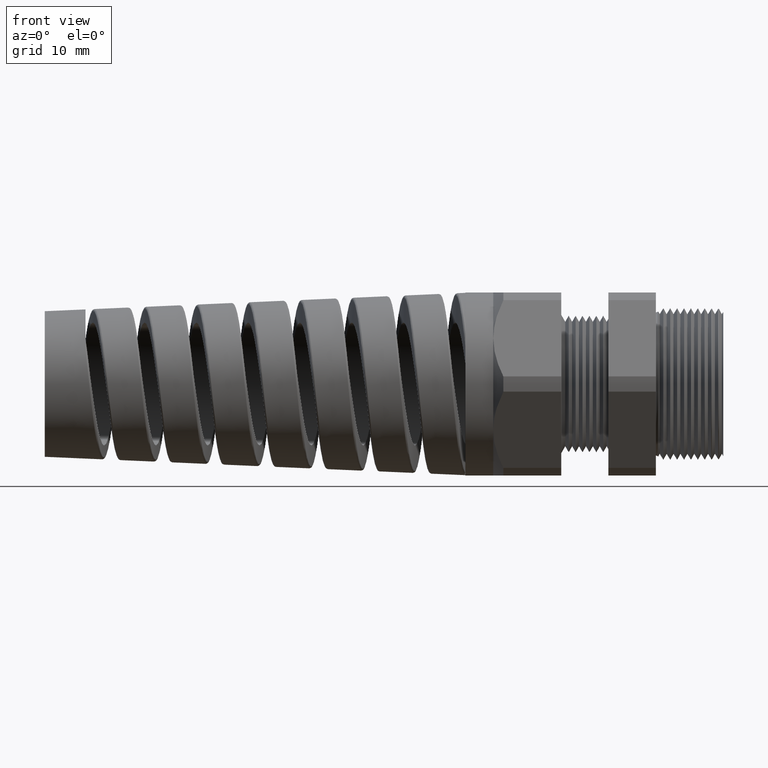
[diagram: clean part render]
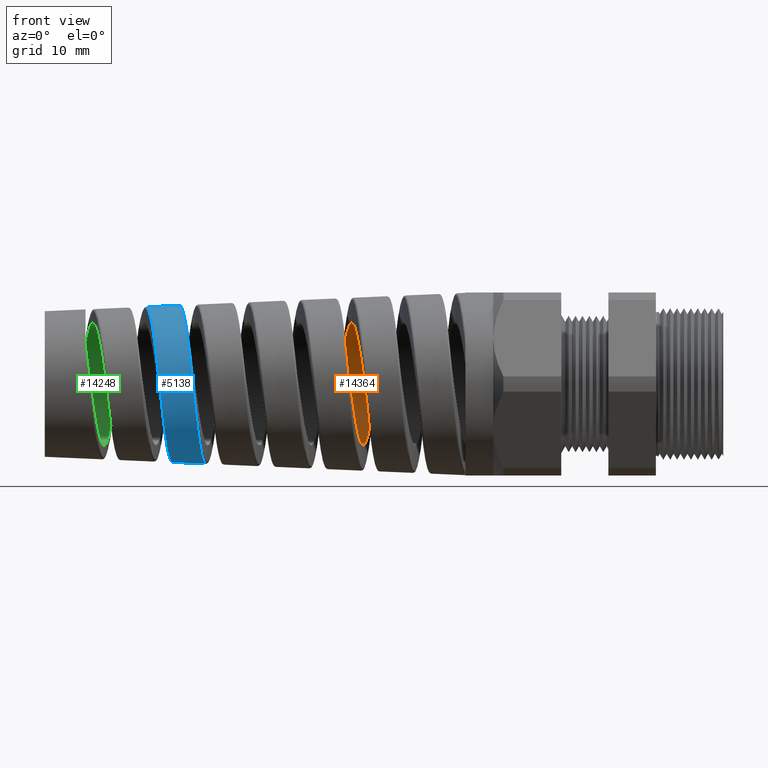
[diagram: same view with three faces highlighted in distinct colors, each labeled with its STEP entity id]
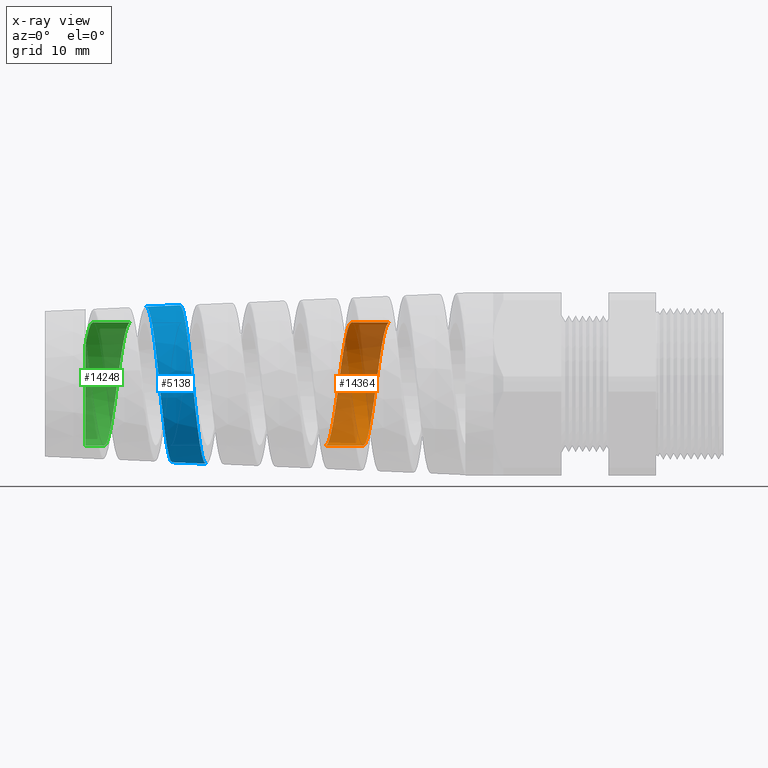
[diagram: x-ray of the same camera — body ghosted, the three highlighted faces saturated]
A machine part, front view with three faces highlighted in distinct colors.
The next image is the same camera in x-ray (body ghosted, the three faces saturated) — at least one of them is partly hidden behind the body in this view.
Their STEP definitions:

[orange] entity #14364 — the highlighted cylindrical surface (partial cylindrical patch) has radius 9.0424 mm, axis along (1, 0, 0).
#1965 = CARTESIAN_POINT ( 'NONE',  ( -1.854920413638555100, 8.926206606485725500E-013, 0.3559999999999997600 ) ) ;
#2959 = CARTESIAN_POINT ( 'NONE',  ( -2.072502589718470600, -5.273363015394949400E-013, 0.3560000000000000900 ) ) ;
#3009 = DIRECTION ( 'NONE',  ( 1.000000000000000000, 0.0000000000000000000, 0.0000000000000000000 ) ) ;
#3010 = VECTOR ( 'NONE', #3009, 39.37007874015748100 ) ;
#3011 = CARTESIAN_POINT ( 'NONE',  ( 0.09602717987635048200, 0.0000000000000000000, -0.3559999999999999800 ) ) ;
#3017 = LINE ( 'NONE', #3011, #3010 ) ;
#3119 = CARTESIAN_POINT ( 'NONE',  ( -2.222434233688555400, -1.128104090228217900E-012, -0.3559999999999998200 ) ) ;
#3122 = CARTESIAN_POINT ( 'NONE',  ( -2.004988656812803200, -1.046852688197125800E-015, -0.3559999999999999800 ) ) ;
#3245 = DIRECTION ( 'NONE',  ( 1.000000000000000000, 0.0000000000000000000, 0.0000000000000000000 ) ) ;
#3246 = VECTOR ( 'NONE', #3245, 39.37007874015748100 ) ;
#3247 = CARTESIAN_POINT ( 'NONE',  ( 0.09602717987635048200, 4.359742604964577000E-017, 0.3559999999999999800 ) ) ;
#3248 = LINE ( 'NONE', #3247, #3246 ) ;
#3771 = FACE_OUTER_BOUND ( 'NONE', #14362, .T. ) ;
#3814 = CARTESIAN_POINT ( 'NONE',  ( -2.158412679944762500, 0.3468693843080136700, -0.08096443874611961000 ) ) ;
#3815 = CARTESIAN_POINT ( 'NONE',  ( -2.153695054397244800, 0.3537357340100373300, -0.04644858373684549600 ) ) ;
#3816 = CARTESIAN_POINT ( 'NONE',  ( -2.150596466477012300, 0.3559917389357876200, -0.02333396272115667900 ) ) ;
#3817 = CARTESIAN_POINT ( 'NONE',  ( -2.145929546067105500, 0.3560040968839250400, 0.01147741275550947200 ) ) ;
#3818 = CARTESIAN_POINT ( 'NONE',  ( -2.144370923244971000, 0.3554422744081823200, 0.02310463939706753800 ) ) ;
#3819 = CARTESIAN_POINT ( 'NONE',  ( -2.141232458981126900, 0.3531566147548692600, 0.04640517485163711500 ) ) ;
#3820 = CARTESIAN_POINT ( 'NONE',  ( -2.139653979790969700, 0.3514257122277755800, 0.05806690458398854800 ) ) ;
#3821 = CARTESIAN_POINT ( 'NONE',  ( -2.134967466613751300, 0.3446011491912281400, 0.09235385464151359100 ) ) ;
#3822 = CARTESIAN_POINT ( 'NONE',  ( -2.131873345007480500, 0.3378721260817478800, 0.1145459677848539700 ) ) ;
#3823 = CARTESIAN_POINT ( 'NONE',  ( -2.127190291039148900, 0.3245205508431142100, 0.1468264286842600500 ) ) ;
#3824 = CARTESIAN_POINT ( 'NONE',  ( -2.125614479652911700, 0.3194947556240857500, 0.1574688813277186600 ) ) ;
#3825 = CARTESIAN_POINT ( 'NONE',  ( -2.122472449403272100, 0.3084464748005442700, 0.1781407298767316300 ) ) ;
#3826 = CARTESIAN_POINT ( 'NONE',  ( -2.120912706550832600, 0.3024530172949440600, 0.1881300522742017600 ) ) ;
#3827 = CARTESIAN_POINT ( 'NONE',  ( -2.116244317971835500, 0.2831060664544171000, 0.2170850803135613300 ) ) ;
#3828 = CARTESIAN_POINT ( 'NONE',  ( -2.113146796100423800, 0.2683987232642024400, 0.2350473460053953100 ) ) ;
#3829 = CARTESIAN_POINT ( 'NONE',  ( -2.108434699411450900, 0.2435541678446720400, 0.2599127732605649400 ) ) ;
#3830 = CARTESIAN_POINT ( 'NONE',  ( -2.106858292739023100, 0.2348292019667128900, 0.2678187355147879100 ) ) ;
#3831 = CARTESIAN_POINT ( 'NONE',  ( -2.103735960787533400, 0.2168232973886299900, 0.2825938550262282500 ) ) ;
#3832 = CARTESIAN_POINT ( 'NONE',  ( -2.102181922764194700, 0.2075001589168221400, 0.2895066539199592800 ) ) ;
#3833 = CARTESIAN_POINT ( 'NONE',  ( -2.099073404438497100, 0.1882236354412332400, 0.3023942487477617700 ) ) ;
#3834 = CARTESIAN_POINT ( 'NONE',  ( -2.097518867349242200, 0.1782702591622995200, 0.3083690439504481700 ) ) ;
#3835 = CARTESIAN_POINT ( 'NONE',  ( -2.094394789012018300, 0.1577255428671440800, 0.3193656301106485000 ) ) ;
#3836 = CARTESIAN_POINT ( 'NONE',  ( -2.092816676020362400, 0.1470739767209700600, 0.3244107612315476600 ) ) ;
#3837 = CARTESIAN_POINT ( 'NONE',  ( -2.088107867420577100, 0.1146222152467938900, 0.3378551972329687000 ) ) ;
#3838 = CARTESIAN_POINT ( 'NONE',  ( -2.085011560015525200, 0.09240749664014777400, 0.3445810370231836000 ) ) ;
#3839 = CARTESIAN_POINT ( 'NONE',  ( -2.080341879989779000, 0.05824814322045637100, 0.3513943126164493200 ) ) ;
#3840 = CARTESIAN_POINT ( 'NONE',  ( -2.078781180237892400, 0.04672115628606296500, 0.3531156685055147300 ) ) ;
#3841 = CARTESIAN_POINT ( 'NONE',  ( -2.075636657848790400, 0.02337947532987080100, 0.3554250158923867300 ) ) ;
#3842 = CARTESIAN_POINT ( 'NONE',  ( -2.074062850385225400, 0.01163927714943782700, 0.3560000000000172500 ) ) ;
#3843 = CARTESIAN_POINT ( 'NONE',  ( -2.072502589718470600, -5.273363015394949400E-013, 0.3560000000000000900 ) ) ;
#3844 = B_SPLINE_CURVE_WITH_KNOTS ( 'NONE', 3,
 ( #3843, #3842, #3841, #3840, #3839, #3838, #3837, #3836, #3835, #3834, #3833, #3832, #3831, #3830, #3829, #3828, #3827, #3826, #3825, #3824, #3823, #3822, #3821, #3820, #3819, #3818, #3817, #3816, #3815, #3814, #3890, #3889, #3888, #3887, #3886, #3885, #3884, #3883, #3882, #3881, #3880, #3879, #3878, #3877, #3876, #3875, #3874, #3873, #3872, #3871 ),
 .UNSPECIFIED., .F., .F.,
 ( 4, 2, 2, 2, 2, 2, 2, 2, 2, 2, 2, 2, 2, 2, 2, 2, 2, 2, 2, 2, 2, 2, 2, 2, 4 ),
 ( 0.1414492424780851600, 0.1423405965915473500, 0.1432319507050095200, 0.1450146589319338800, 0.1459060130453960800, 0.1467973671588582700, 0.1476887212723204400, 0.1485800753857826300, 0.1503627836127070000, 0.1512541377261691900, 0.1521454918396313600, 0.1539282000665557200, 0.1548195541800179200, 0.1557109082934800800, 0.1574936165204044400, 0.1583849706338666400, 0.1592763247473288100, 0.1601676788607910000, 0.1610590329742531700, 0.1628417412011775300, 0.1646244494281018900, 0.1664071576550262600, 0.1672985117684884500, 0.1681898658819506200, 0.1699725741088749800 ),
 .UNSPECIFIED. ) ;
#3845 = DIRECTION ( 'NONE',  ( 0.0000000000000000000, 0.0000000000000000000, -1.000000000000000000 ) ) ;
#3846 = DIRECTION ( 'NONE',  ( 1.000000000000000000, 0.0000000000000000000, 0.0000000000000000000 ) ) ;
#3847 = CARTESIAN_POINT ( 'NONE',  ( 0.09602717987635048200, 0.0000000000000000000, 0.0000000000000000000 ) ) ;
#3848 = AXIS2_PLACEMENT_3D ( 'NONE', #3847, #3846, #3845 ) ;
#3849 = CYLINDRICAL_SURFACE ( 'NONE', #3848, 0.3559999999999999800 ) ;
#3850 = CARTESIAN_POINT ( 'NONE',  ( -1.945581889512683500, 0.3378249631781710100, -0.1146716931420971000 ) ) ;
#3851 = CARTESIAN_POINT ( 'NONE',  ( -1.950255707987540700, 0.3245047687917638200, -0.1468587102285925900 ) ) ;
#3852 = CARTESIAN_POINT ( 'NONE',  ( -1.951817875396148100, 0.3195289945818805000, -0.1574002711191545800 ) ) ;
#3853 = CARTESIAN_POINT ( 'NONE',  ( -1.954966085702651400, 0.3084733784352756100, -0.1780949143676429100 ) ) ;
#3854 = CARTESIAN_POINT ( 'NONE',  ( -1.956540205562431900, 0.3024314793032005200, -0.1881664079164996600 ) ) ;
#3855 = CARTESIAN_POINT ( 'NONE',  ( -1.961224544814732100, 0.2830320125028549200, -0.2171876305535535800 ) ) ;
#3856 = CARTESIAN_POINT ( 'NONE',  ( -1.964320939049746500, 0.2683268495074726000, -0.2351183002734366900 ) ) ;
#3857 = CARTESIAN_POINT ( 'NONE',  ( -1.969014727328868100, 0.2436013105784269600, -0.2598660805241651600 ) ) ;
#3858 = CARTESIAN_POINT ( 'NONE',  ( -1.970596213287425300, 0.2348601596722508000, -0.2677936842475280900 ) ) ;
#3859 = CARTESIAN_POINT ( 'NONE',  ( -1.973734461911268200, 0.2167795374018720300, -0.2826294112224881400 ) ) ;
#3860 = CARTESIAN_POINT ( 'NONE',  ( -1.975293696179423900, 0.2074329099656938800, -0.2895550813819081600 ) ) ;
#3861 = CARTESIAN_POINT ( 'NONE',  ( -1.979963397531577800, 0.1784983896883088100, -0.3088892261675006400 ) ) ;
#3862 = CARTESIAN_POINT ( 'NONE',  ( -1.983065319302467200, 0.1580242885395968800, -0.3198685890049364800 ) ) ;
#3863 = CARTESIAN_POINT ( 'NONE',  ( -1.989367806858804800, 0.1146330092275015000, -0.3378562759457079400 ) ) ;
#3864 = CARTESIAN_POINT ( 'NONE',  ( -1.992482767404386100, 0.09230622085777952200, -0.3446060274759786300 ) ) ;
#3865 = CARTESIAN_POINT ( 'NONE',  ( -1.997150266791141800, 0.05819252169453835400, -0.3514030002209510000 ) ) ;
#3866 = CARTESIAN_POINT ( 'NONE',  ( -1.998707258243030100, 0.04670142512174314100, -0.3531163331949078200 ) ) ;
#3867 = CARTESIAN_POINT ( 'NONE',  ( -2.001838611259727100, 0.02347686933435521800, -0.3554166632048597100 ) ) ;
#3868 = CARTESIAN_POINT ( 'NONE',  ( -2.003420831685201400, 0.01168465934090673000, -0.3559999999999997100 ) ) ;
#3869 = CARTESIAN_POINT ( 'NONE',  ( -2.004988656812803200, -1.046852688197125800E-015, -0.3559999999999999800 ) ) ;
#3870 = B_SPLINE_CURVE_WITH_KNOTS ( 'NONE', 3,
 ( #3869, #3868, #3867, #3866, #3865, #3864, #3863, #3862, #3861, #3860, #3859, #3858, #3857, #3856, #3855, #3854, #3853, #3852, #3851, #3850, #3932, #3931, #3930, #3929, #3928, #3927, #3926, #3925, #3924, #3923, #3922, #3921, #3920, #3919, #3918, #3917, #3916, #3915, #3914, #3913, #3912, #3911, #3910, #3909, #3908, #3907, #3906, #3905, #3904, #3903, #3902 ),
 .UNSPECIFIED., .F., .F.,
 ( 4, 2, 2, 2, 2, 2, 2, 2, 2, 2, 2, 2, 1, 2, 2, 2, 2, 2, 2, 2, 2, 2, 2, 2, 2, 4 ),
 ( 0.3052336296755255300, 0.3061232269681359300, 0.3070128242607463300, 0.3087920188459670800, 0.3105712134311878800, 0.3114608107237982800, 0.3123504080164086800, 0.3141296026016294200, 0.3150191998942398200, 0.3159087971868502200, 0.3176879917720709700, 0.3185775890646813700, 0.3194671863572917700, 0.3203567836499021700, 0.3212463809425125700, 0.3230255755277333100, 0.3239151728203437100, 0.3248047701129541100, 0.3265839646981748600, 0.3274735619907852600, 0.3283631592833956600, 0.3301423538686164000, 0.3310319511612268000, 0.3319215484538372000, 0.3328111457464475500, 0.3337007430390579500 ),
 .UNSPECIFIED. ) ;
#3871 = CARTESIAN_POINT ( 'NONE',  ( -2.222434233688555400, -1.128104090228217900E-012, -0.3559999999999998200 ) ) ;
#3872 = CARTESIAN_POINT ( 'NONE',  ( -2.219282582438263200, 0.02350929705091474700, -0.3560000000000743700 ) ) ;
#3873 = CARTESIAN_POINT ( 'NONE',  ( -2.216181574039021400, 0.04663653870453374900, -0.3536935862579064200 ) ) ;
#3874 = CARTESIAN_POINT ( 'NONE',  ( -2.211517095515436600, 0.08076527869489226500, -0.3469113715099522200 ) ) ;
#3875 = CARTESIAN_POINT ( 'NONE',  ( -2.209960157898404700, 0.09204716843761767700, -0.3440928556382720800 ) ) ;
#3876 = CARTESIAN_POINT ( 'NONE',  ( -2.206826889096192600, 0.1144159396056732600, -0.3373152342880986800 ) ) ;
#3877 = CARTESIAN_POINT ( 'NONE',  ( -2.205245989892798100, 0.1255326475555748300, -0.3333372458376107100 ) ) ;
#3878 = CARTESIAN_POINT ( 'NONE',  ( -2.200552753367933900, 0.1578717008596086400, -0.3199330966426531300 ) ) ;
#3879 = CARTESIAN_POINT ( 'NONE',  ( -2.197458470892251100, 0.1783232386189384500, -0.3089951313928306400 ) ) ;
#3880 = CARTESIAN_POINT ( 'NONE',  ( -2.191221605846089400, 0.2170180544513994100, -0.2831613192124746700 ) ) ;
#3881 = CARTESIAN_POINT ( 'NONE',  ( -2.188058357900275500, 0.2353448870828924200, -0.2681203304292607000 ) ) ;
#3882 = CARTESIAN_POINT ( 'NONE',  ( -2.181829036862596100, 0.2681947505142969800, -0.2352600757930025400 ) ) ;
#3883 = CARTESIAN_POINT ( 'NONE',  ( -2.178733512588884900, 0.2829288902790004200, -0.2173348534508903500 ) ) ;
#3884 = CARTESIAN_POINT ( 'NONE',  ( -2.174029870043063800, 0.3024334223929781600, -0.1881670106299909400 ) ) ;
#3885 = CARTESIAN_POINT ( 'NONE',  ( -2.172449855942211600, 0.3084994778942341000, -0.1780450713298756500 ) ) ;
#3886 = CARTESIAN_POINT ( 'NONE',  ( -2.169323390643812700, 0.3194895041396869100, -0.1574751790932542600 ) ) ;
#3887 = CARTESIAN_POINT ( 'NONE',  ( -2.167768202868915100, 0.3244516507244454300, -0.1469746845975247200 ) ) ;
#3888 = CARTESIAN_POINT ( 'NONE',  ( -2.164659353554936800, 0.3333274839499514900, -0.1255516627287512900 ) ) ;
#3889 = CARTESIAN_POINT ( 'NONE',  ( -2.163105785524290300, 0.3372411601190869500, -0.1146291175653078400 ) ) ;
#3890 = CARTESIAN_POINT ( 'NONE',  ( -2.159985655876301100, 0.3440076049692303900, -0.09235909481801328500 ) ) ;
#3902 = CARTESIAN_POINT ( 'NONE',  ( -1.854920413638555100, 8.926206606485725500E-013, 0.3559999999999997600 ) ) ;
#3903 = CARTESIAN_POINT ( 'NONE',  ( -1.856490290351032100, 0.01169929574673219400, 0.3559999999999707800 ) ) ;
#3904 = CARTESIAN_POINT ( 'NONE',  ( -1.858071090028746700, 0.02348051253545175100, 0.3554160207823032800 ) ) ;
#3905 = CARTESIAN_POINT ( 'NONE',  ( -1.861199163982219400, 0.04668075675614861300, 0.3531186617078279600 ) ) ;
#3906 = CARTESIAN_POINT ( 'NONE',  ( -1.862755221142768000, 0.05816541511188726100, 0.3514074432804947200 ) ) ;
#3907 = CARTESIAN_POINT ( 'NONE',  ( -1.865866361935213800, 0.08090558854822207900, 0.3468784981081100000 ) ) ;
#3908 = CARTESIAN_POINT ( 'NONE',  ( -1.867421370689841000, 0.09216111109889671400, 0.3440607576564292900 ) ) ;
#3909 = CARTESIAN_POINT ( 'NONE',  ( -1.870545172256144600, 0.1144383366460645100, 0.3373060071563822600 ) ) ;
#3910 = CARTESIAN_POINT ( 'NONE',  ( -1.872120910461125600, 0.1255087372273542600, 0.3333482266667768300 ) ) ;
#3911 = CARTESIAN_POINT ( 'NONE',  ( -1.876840872860376700, 0.1580028208588394000, 0.3198766042864170700 ) ) ;
#3912 = CARTESIAN_POINT ( 'NONE',  ( -1.879941112830108500, 0.1784682401941465900, 0.3089072968866609600 ) ) ;
#3913 = CARTESIAN_POINT ( 'NONE',  ( -1.884612254938905500, 0.2074149920363135300, 0.2895680900678300200 ) ) ;
#3914 = CARTESIAN_POINT ( 'NONE',  ( -1.886172663699563500, 0.2167699579621544000, 0.2826373948399384400 ) ) ;
#3915 = CARTESIAN_POINT ( 'NONE',  ( -1.889315277330223500, 0.2348742232553461800, 0.2677820212169205200 ) ) ;
#3916 = CARTESIAN_POINT ( 'NONE',  ( -1.890894495495576200, 0.2436015473168248700, 0.2598653415003657800 ) ) ;
#3917 = CARTESIAN_POINT ( 'NONE',  ( -1.895583776977985300, 0.2683033925197587700, 0.2351427818058649800 ) ) ;
#3918 = CARTESIAN_POINT ( 'NONE',  ( -1.898679906257533000, 0.2830116401921731200, 0.2172163446924760300 ) ) ;
#3919 = CARTESIAN_POINT ( 'NONE',  ( -1.903367959337817400, 0.3024291902741095300, 0.1881707126297887900 ) ) ;
#3920 = CARTESIAN_POINT ( 'NONE',  ( -1.904946304591731000, 0.3084858841378951300, 0.1780721396241471400 ) ) ;
#3921 = CARTESIAN_POINT ( 'NONE',  ( -1.908090189491694400, 0.3195250514318716000, 0.1574070174106620100 ) ) ;
#3922 = CARTESIAN_POINT ( 'NONE',  ( -1.909650939968628600, 0.3244968161099519600, 0.1468758313387986700 ) ) ;
#3923 = CARTESIAN_POINT ( 'NONE',  ( -1.914322532933041100, 0.3378126955796597600, 0.1147055216327516500 ) ) ;
#3924 = CARTESIAN_POINT ( 'NONE',  ( -1.917422367284874300, 0.3445723792742405000, 0.09249498516171267300 ) ) ;
#3925 = CARTESIAN_POINT ( 'NONE',  ( -1.922140466194579800, 0.3514371363423332600, 0.05801121365041780200 ) ) ;
#3926 = CARTESIAN_POINT ( 'NONE',  ( -1.923717518989629600, 0.3531588921262091000, 0.04637180833403891500 ) ) ;
#3927 = CARTESIAN_POINT ( 'NONE',  ( -1.926842012507929100, 0.3554340858234068500, 0.02319823982244030200 ) ) ;
#3928 = CARTESIAN_POINT ( 'NONE',  ( -1.929952308264917700, 0.3565649661623549500, 1.722920834371084200E-005 ) ) ;
#3929 = CARTESIAN_POINT ( 'NONE',  ( -1.933063960222239300, 0.3554359880401876100, -0.02317451516833173700 ) ) ;
#3930 = CARTESIAN_POINT ( 'NONE',  ( -1.936191189536016000, 0.3531595255014310400, -0.04636970233887240100 ) ) ;
#3931 = CARTESIAN_POINT ( 'NONE',  ( -1.937771322399617100, 0.3514330194747369300, -0.05803289224370490600 ) ) ;
#3932 = CARTESIAN_POINT ( 'NONE',  ( -1.942483047701999600, 0.3445771394682988200, -0.09246907587429166500 ) ) ;
#14177 = VERTEX_POINT ( 'NONE', #1965 ) ;
#14200 = VERTEX_POINT ( 'NONE', #2959 ) ;
#14211 = EDGE_CURVE ( 'NONE', #14219, #14215, #3017, .T. ) ;
#14215 = VERTEX_POINT ( 'NONE', #3122 ) ;
#14219 = VERTEX_POINT ( 'NONE', #3119 ) ;
#14235 = EDGE_CURVE ( 'NONE', #14200, #14177, #3248, .T. ) ;
#14362 = EDGE_LOOP ( 'NONE', ( #14371, #14368, #14369, #14370 ) ) ;
#14364 = ADVANCED_FACE ( 'NONE', ( #3771 ), #3849, .F. ) ;
#14365 = EDGE_CURVE ( 'NONE', #14200, #14219, #3844, .T. ) ;
#14366 = EDGE_CURVE ( 'NONE', #14215, #14177, #3870, .T. ) ;
#14368 = ORIENTED_EDGE ( 'NONE', *, *, #14365, .T. ) ;
#14369 = ORIENTED_EDGE ( 'NONE', *, *, #14211, .T. ) ;
#14370 = ORIENTED_EDGE ( 'NONE', *, *, #14366, .T. ) ;
#14371 = ORIENTED_EDGE ( 'NONE', *, *, #14235, .F. ) ;

[blue] entity #5138 — the highlighted conical surface has half-angle 2.5 deg.
#4384 = B_SPLINE_CURVE_WITH_KNOTS ( 'NONE', 3,
 ( #4463, #4462, #4461, #4460, #4459, #4458, #4456, #4455, #4454, #4453, #4452, #4451, #4450, #4449, #4448, #4447, #4446, #4445, #4444, #4443, #4442, #4441, #4440, #4439, #4438, #4437, #4436, #4435, #4434, #4433, #4432, #4430, #4429, #4428, #4427, #4426, #4425, #4424, #4423, #4422, #4421, #4419, #4418, #4417, #4416, #4415, #4413, #4412, #4411, #4410, #4505 ),
 .UNSPECIFIED., .F., .F.,
 ( 4, 2, 2, 2, 2, 2, 1, 2, 2, 2, 2, 2, 2, 2, 2, 2, 2, 2, 2, 2, 2, 2, 2, 2, 2, 4 ),
 ( 0.3956907443716088900, 0.3979945064264873700, 0.3991463874539265500, 0.4002982684813657900, 0.4026020305362442700, 0.4037539115636834500, 0.4049057925911226900, 0.4060576736185619300, 0.4072095546460011700, 0.4095133167008795900, 0.4106651977283188300, 0.4118170787557580700, 0.4141208408106364900, 0.4152727218380757300, 0.4164246028655149700, 0.4187283649203933900, 0.4198802459478326300, 0.4210321269752718700, 0.4221840080027110500, 0.4233358890301502900, 0.4256396510850287700, 0.4267915321124679500, 0.4279434131399071900, 0.4302471751947856100, 0.4313990562222248500, 0.4325509372496640900 ),
 .UNSPECIFIED. ) ;
#4410 = CARTESIAN_POINT ( 'NONE',  ( -3.065966303437032400, -0.01496096475021816900, 0.4559525120508748900 ) ) ;
#4411 = CARTESIAN_POINT ( 'NONE',  ( -3.064398234597653900, -0.02994563471669756100, 0.4552863226410138700 ) ) ;
#4412 = CARTESIAN_POINT ( 'NONE',  ( -3.061243053662795300, -0.05996181023624520100, 0.4524517854395457800 ) ) ;
#4413 = CARTESIAN_POINT ( 'NONE',  ( -3.059651272904924100, -0.07503584428520906900, 0.4502669952835279300 ) ) ;
#4415 = CARTESIAN_POINT ( 'NONE',  ( -3.054927394172071200, -0.1193474868382107500, 0.4415821479180920800 ) ) ;
#4416 = CARTESIAN_POINT ( 'NONE',  ( -3.051814601432052900, -0.1479938914249593600, 0.4329608601694569500 ) ) ;
#4417 = CARTESIAN_POINT ( 'NONE',  ( -3.047109736376168300, -0.1896255956255996100, 0.4158262455275546500 ) ) ;
#4418 = CARTESIAN_POINT ( 'NONE',  ( -3.045530115946749400, -0.2033237215062874700, 0.4093847319401410200 ) ) ;
#4419 = CARTESIAN_POINT ( 'NONE',  ( -3.042366702797020500, -0.2300491376530209300, 0.3951455484035618600 ) ) ;
#4421 = CARTESIAN_POINT ( 'NONE',  ( -3.040797519056564800, -0.2429547040230365100, 0.3874189261759706800 ) ) ;
#4422 = CARTESIAN_POINT ( 'NONE',  ( -3.036104184544465400, -0.2803415895562102500, 0.3624770875316280500 ) ) ;
#4423 = CARTESIAN_POINT ( 'NONE',  ( -3.032995206083749700, -0.3035056542733021700, 0.3435163501048774100 ) ) ;
#4424 = CARTESIAN_POINT ( 'NONE',  ( -3.028270497767650200, -0.3355440851683138500, 0.3115033393374694900 ) ) ;
#4425 = CARTESIAN_POINT ( 'NONE',  ( -3.026685760166439600, -0.3457576073472070600, 0.3002287007459239500 ) ) ;
#4426 = CARTESIAN_POINT ( 'NONE',  ( -3.023550205308020500, -0.3648217347275012300, 0.2769765819475972800 ) ) ;
#4427 = CARTESIAN_POINT ( 'NONE',  ( -3.021990500230880400, -0.3737345162677697700, 0.2649404389867333600 ) ) ;
#4428 = CARTESIAN_POINT ( 'NONE',  ( -3.018872566104482400, -0.3903404628272947900, 0.2400623432134164100 ) ) ;
#4429 = CARTESIAN_POINT ( 'NONE',  ( -3.017314483268243900, -0.3980336201797459200, 0.2272203669839791600 ) ) ;
#4430 = CARTESIAN_POINT ( 'NONE',  ( -3.014184877450620400, -0.4121841940625503000, 0.2007218259506501900 ) ) ;
#4432 = CARTESIAN_POINT ( 'NONE',  ( -3.012605504121586900, -0.4186696826684887000, 0.1869944205653392400 ) ) ;
#4433 = CARTESIAN_POINT ( 'NONE',  ( -3.007882609700840400, -0.4359811371960171100, 0.1450736790298209900 ) ) ;
#4434 = CARTESIAN_POINT ( 'NONE',  ( -3.004780015285975400, -0.4446167695557893300, 0.1163984701332417500 ) ) ;
#4435 = CARTESIAN_POINT ( 'NONE',  ( -3.000106301271525700, -0.4533377038317678600, 0.07233438975423613100 ) ) ;
#4436 = CARTESIAN_POINT ( 'NONE',  ( -2.998545221564824700, -0.4555342131238623300, 0.05746988111916352000 ) ) ;
#4437 = CARTESIAN_POINT ( 'NONE',  ( -2.995401213531666800, -0.4584654612114825700, 0.02737940767857301200 ) ) ;
#4438 = CARTESIAN_POINT ( 'NONE',  ( -2.993824335155306200, -0.4591856381027997200, 0.01221106242801633400 ) ) ;
#4439 = CARTESIAN_POINT ( 'NONE',  ( -2.989139920509837000, -0.4591143429546805100, -0.03285328794745724600 ) ) ;
#4440 = CARTESIAN_POINT ( 'NONE',  ( -2.986046248288418200, -0.4561464752251186400, -0.06261834239828016600 ) ) ;
#4441 = CARTESIAN_POINT ( 'NONE',  ( -2.981362650707314100, -0.4473097930354966200, -0.1068396094511776400 ) ) ;
#4442 = CARTESIAN_POINT ( 'NONE',  ( -2.979785467984751500, -0.4436015786626225600, -0.1215886331890184300 ) ) ;
#4443 = CARTESIAN_POINT ( 'NONE',  ( -2.976650217509385000, -0.4347964925353293200, -0.1504793810613005700 ) ) ;
#4444 = CARTESIAN_POINT ( 'NONE',  ( -2.975093641971009500, -0.4297141463416904700, -0.1646095375433638800 ) ) ;
#4445 = CARTESIAN_POINT ( 'NONE',  ( -2.970433907383214700, -0.4124827496095036500, -0.2060773212831340200 ) ) ;
#4446 = CARTESIAN_POINT ( 'NONE',  ( -2.967341145188298500, -0.3983680909908949300, -0.2325010386412226500 ) ) ;
#4447 = CARTESIAN_POINT ( 'NONE',  ( -2.962634752434249600, -0.3731327143134309200, -0.2702371364138443400 ) ) ;
#4448 = CARTESIAN_POINT ( 'NONE',  ( -2.961065705877442800, -0.3640932782838138300, -0.2824034505797886600 ) ) ;
#4449 = CARTESIAN_POINT ( 'NONE',  ( -2.957954392303942600, -0.3450327652800666000, -0.3056029346600583300 ) ) ;
#4450 = CARTESIAN_POINT ( 'NONE',  ( -2.954856876717940800, -0.3249215694828769800, -0.3277742844856643700 ) ) ;
#4451 = CARTESIAN_POINT ( 'NONE',  ( -2.951757297896511600, -0.3027355947016616700, -0.3479111092301534500 ) ) ;
#4452 = CARTESIAN_POINT ( 'NONE',  ( -2.948642386326539600, -0.2794960450056801500, -0.3670127176669478700 ) ) ;
#4453 = CARTESIAN_POINT ( 'NONE',  ( -2.947068673128034900, -0.2672777195345486000, -0.3760901791409492200 ) ) ;
#4454 = CARTESIAN_POINT ( 'NONE',  ( -2.942383872361521700, -0.2296532244610928200, -0.4012634707199072600 ) ) ;
#4455 = CARTESIAN_POINT ( 'NONE',  ( -2.939302664264453700, -0.2032640878766137600, -0.4153889590340920600 ) ) ;
#4456 = CARTESIAN_POINT ( 'NONE',  ( -2.934654612271233400, -0.1617722362975241600, -0.4326753014391496700 ) ) ;
#4458 = CARTESIAN_POINT ( 'NONE',  ( -2.933100988339647900, -0.1476213659857432700, -0.4377825741291313500 ) ) ;
#4459 = CARTESIAN_POINT ( 'NONE',  ( -2.929970583285731200, -0.1186599915439475700, -0.4466449335318482000 ) ) ;
#4460 = CARTESIAN_POINT ( 'NONE',  ( -2.928408759933426100, -0.1039879416159606900, -0.4503523973017249900 ) ) ;
#4461 = CARTESIAN_POINT ( 'NONE',  ( -2.923757907444952700, -0.05985499600792052600, -0.4592509395223409200 ) ) ;
#4462 = CARTESIAN_POINT ( 'NONE',  ( -2.920683600769898200, -0.03009480090050580000, -0.4622956918376550700 ) ) ;
#4463 = CARTESIAN_POINT ( 'NONE',  ( -2.917576936011690800, 5.561243433149857400E-013, -0.4624313317502629600 ) ) ;
#4464 = CARTESIAN_POINT ( 'NONE',  ( -3.154403974509338400, -0.3575729694230273000, -0.2770358773965023700 ) ) ;
#4465 = CARTESIAN_POINT ( 'NONE',  ( -3.155973169518579500, -0.3664267376826680400, -0.2650907420233981600 ) ) ;
#4466 = CARTESIAN_POINT ( 'NONE',  ( -3.160644521963085700, -0.3909869223331196000, -0.2283371784856030300 ) ) ;
#4467 = CARTESIAN_POINT ( 'NONE',  ( -3.163734010841007000, -0.4048518209194720300, -0.2024496392053277400 ) ) ;
#4468 = CARTESIAN_POINT ( 'NONE',  ( -3.168420324540140300, -0.4218518146535071800, -0.1615323849473142000 ) ) ;
#4469 = CARTESIAN_POINT ( 'NONE',  ( -3.169999749130748300, -0.4269013972744376600, -0.1474643674028570900 ) ) ;
#4470 = CARTESIAN_POINT ( 'NONE',  ( -3.173133878344217300, -0.4355171802751136000, -0.1191293664618253000 ) ) ;
#4471 = CARTESIAN_POINT ( 'NONE',  ( -3.174691269719708100, -0.4391018684719634700, -0.1048413725294183200 ) ) ;
#4472 = CARTESIAN_POINT ( 'NONE',  ( -3.179356640797135600, -0.4477364161681149400, -0.06162657986019903800 ) ) ;
#4473 = CARTESIAN_POINT ( 'NONE',  ( -3.182457461009004200, -0.4506871526075220700, -0.03235230023212762300 ) ) ;
#4474 = CARTESIAN_POINT ( 'NONE',  ( -3.188762247706076600, -0.4507553516426532300, 0.02714860890852704300 ) ) ;
#4475 = CARTESIAN_POINT ( 'NONE',  ( -3.191877309510403800, -0.4478579382076938200, 0.05652918799774615100 ) ) ;
#4476 = CARTESIAN_POINT ( 'NONE',  ( -3.196549310332669400, -0.4393095027218386100, 0.09974398332042969100 ) ) ;
#4477 = CARTESIAN_POINT ( 'NONE',  ( -3.198108328443359600, -0.4357545342664613200, 0.1140231079262532400 ) ) ;
#4478 = CARTESIAN_POINT ( 'NONE',  ( -3.201244973575852400, -0.4272050555387856300, 0.1423230073278716200 ) ) ;
#4479 = CARTESIAN_POINT ( 'NONE',  ( -3.202830107641168500, -0.4221786430699240300, 0.1564073377828444100 ) ) ;
#4480 = CARTESIAN_POINT ( 'NONE',  ( -3.207541442319416600, -0.4052114011469052400, 0.1974163928915869400 ) ) ;
#4481 = CARTESIAN_POINT ( 'NONE',  ( -3.210646244257149300, -0.3913646872396933700, 0.2233215915158312000 ) ) ;
#4482 = CARTESIAN_POINT ( 'NONE',  ( -3.216901884574085500, -0.3586779620199427900, 0.2722929128785150900 ) ) ;
#4483 = CARTESIAN_POINT ( 'NONE',  ( -3.220078655057433200, -0.3396248217580819500, 0.2955052634816405800 ) ) ;
#4484 = CARTESIAN_POINT ( 'NONE',  ( -3.226339557927220700, -0.2979690935328347400, 0.3371012866185239000 ) ) ;
#4485 = CARTESIAN_POINT ( 'NONE',  ( -3.229449998926005300, -0.2752565717022714100, 0.3557307734175193500 ) ) ;
#4486 = CARTESIAN_POINT ( 'NONE',  ( -3.234175484079533400, -0.2383184244107868800, 0.3803587293740164900 ) ) ;
#4487 = CARTESIAN_POINT ( 'NONE',  ( -3.235765441642302100, -0.2254810113579018800, 0.3880255287620716900 ) ) ;
#4488 = CARTESIAN_POINT ( 'NONE',  ( -3.238912566465565600, -0.1993895172246622200, 0.4019030635428950700 ) ) ;
#4489 = CARTESIAN_POINT ( 'NONE',  ( -3.240477819361347000, -0.1860745386235409000, 0.4081598816944078100 ) ) ;
#4490 = CARTESIAN_POINT ( 'NONE',  ( -3.243606851778854800, -0.1589174447586172700, 0.4193339813808845700 ) ) ;
#4491 = CARTESIAN_POINT ( 'NONE',  ( -3.245170500935557400, -0.1450753079059494100, 0.4242512461646483800 ) ) ;
#4492 = CARTESIAN_POINT ( 'NONE',  ( -3.248310950994168300, -0.1168599190308030200, 0.4327318485285450200 ) ) ;
#4493 = CARTESIAN_POINT ( 'NONE',  ( -3.249893061771123900, -0.1024378092872423200, 0.4363045278847715900 ) ) ;
#4494 = CARTESIAN_POINT ( 'NONE',  ( -3.254648241214033200, -0.05867109445092624100, 0.4448479792243736900 ) ) ;
#4495 = CARTESIAN_POINT ( 'NONE',  ( -3.257771018371880900, -0.02938478728776864800, 0.4475781373425873300 ) ) ;
#4496 = CARTESIAN_POINT ( 'NONE',  ( -3.260907839818875800, 1.011839699209273400E-012, 0.4474411807604094500 ) ) ;
#4499 = B_SPLINE_CURVE_WITH_KNOTS ( 'NONE', 3,
 ( #4496, #4495, #4494, #4493, #4492, #4491, #4490, #4489, #4488, #4487, #4486, #4485, #4484, #4483, #4482, #4481, #4480, #4479, #4478, #4477, #4476, #4475, #4474, #4473, #4472, #4471, #4470, #4469, #4468, #4467, #4466, #4465, #4464, #4544, #4543, #4542, #4541, #4540, #4539, #4538, #4537, #4536, #4535, #4534, #4533, #4532, #4531 ),
 .UNSPECIFIED., .F., .F.,
 ( 4, 2, 2, 2, 2, 2, 2, 2, 2, 2, 2, 2, 2, 2, 2, 2, 2, 2, 2, 2, 1, 2, 2, 4 ),
 ( 0.08366685018405091400, 0.08594635664712588200, 0.08708610987866335900, 0.08822586311020083600, 0.08936561634173832700, 0.09050536957327580400, 0.09278487603635077200, 0.09506438249942572600, 0.09734388896250068000, 0.09848364219403815700, 0.09962339542557563400, 0.1019029018886505900, 0.1041824083517255400, 0.1053221615832630200, 0.1064619148148005000, 0.1087414212778754500, 0.1098811745094129300, 0.1110209277409504000, 0.1133004342040253600, 0.1144401874355628300, 0.1155799406671003100, 0.1167196938986377900, 0.1178594471301752700, 0.1201389535932502200 ),
 .UNSPECIFIED. ) ;
#4505 = CARTESIAN_POINT ( 'NONE',  ( -3.067532676807746200, 4.560865582413023300E-015, 0.4558841227125626200 ) ) ;
#4531 = CARTESIAN_POINT ( 'NONE',  ( -3.110863719077956900, -6.432869332600892800E-014, -0.4539922485498366600 ) ) ;
#4532 = CARTESIAN_POINT ( 'NONE',  ( -3.113955373627790300, -0.02938980343146984500, -0.4538572639970394100 ) ) ;
#4533 = CARTESIAN_POINT ( 'NONE',  ( -3.117035447063029700, -0.05864637992431008500, -0.4508958600573859100 ) ) ;
#4534 = CARTESIAN_POINT ( 'NONE',  ( -3.121726794749530900, -0.1023154237686354800, -0.4420753533667559100 ) ) ;
#4535 = CARTESIAN_POINT ( 'NONE',  ( -3.123293002473745500, -0.1167461099523017800, -0.4384109340755780200 ) ) ;
#4536 = CARTESIAN_POINT ( 'NONE',  ( -3.126398571757019100, -0.1449338374631221600, -0.4297732356774309800 ) ) ;
#4537 = CARTESIAN_POINT ( 'NONE',  ( -3.129491242982216400, -0.1725787424838716200, -0.4198015975123325900 ) ) ;
#4538 = CARTESIAN_POINT ( 'NONE',  ( -3.132587438289150800, -0.1991475905184080500, -0.4071937958563816000 ) ) ;
#4539 = CARTESIAN_POINT ( 'NONE',  ( -3.135700266319960700, -0.2251679712615349300, -0.3932464976634215100 ) ) ;
#4540 = CARTESIAN_POINT ( 'NONE',  ( -3.137273762305405400, -0.2379717095384142100, -0.3855546241225111800 ) ) ;
#4541 = CARTESIAN_POINT ( 'NONE',  ( -3.141963558819316700, -0.2749052391499349800, -0.3608093639622186300 ) ) ;
#4542 = CARTESIAN_POINT ( 'NONE',  ( -3.145049616316417200, -0.2975964580564364700, -0.3421364401032303000 ) ) ;
#4543 = CARTESIAN_POINT ( 'NONE',  ( -3.149707314064701600, -0.3287925122049642500, -0.3109400114383841200 ) ) ;
#4544 = CARTESIAN_POINT ( 'NONE',  ( -3.151264581320620400, -0.3387144388367910900, -0.3000063146103487100 ) ) ;
#5133 = EDGE_LOOP ( 'NONE', ( #14556, #14568, #14566, #14560 ) ) ;
#5138 = ADVANCED_FACE ( 'NONE', ( #7551 ), #7590, .T. ) ;
#5863 = VERTEX_POINT ( 'NONE', #9649 ) ;
#6004 = VERTEX_POINT ( 'NONE', #12560 ) ;
#6008 = EDGE_CURVE ( 'NONE', #6004, #6010, #12558, .T. ) ;
#6010 = VERTEX_POINT ( 'NONE', #12550 ) ;
#6064 = VERTEX_POINT ( 'NONE', #12648 ) ;
#6068 = EDGE_CURVE ( 'NONE', #5863, #6064, #12672, .T. ) ;
#7551 = FACE_OUTER_BOUND ( 'NONE', #5133, .T. ) ;
#7586 = DIRECTION ( 'NONE',  ( 0.0000000000000000000, 0.0000000000000000000, -1.000000000000000000 ) ) ;
#7587 = DIRECTION ( 'NONE',  ( 1.000000000000000000, 0.0000000000000000000, 0.0000000000000000000 ) ) ;
#7588 = CARTESIAN_POINT ( 'NONE',  ( -1.369999999999999900, 0.0000000000000000000, 0.0000000000000000000 ) ) ;
#7589 = AXIS2_PLACEMENT_3D ( 'NONE', #7588, #7587, #7586 ) ;
#7590 = CONICAL_SURFACE ( 'NONE', #7589, 0.5299999999999999200, 0.04363323129985854900 ) ;
#9649 = CARTESIAN_POINT ( 'NONE',  ( -3.110863719077956900, -6.432869332600892800E-014, -0.4539922485498366600 ) ) ;
#12550 = CARTESIAN_POINT ( 'NONE',  ( -3.067532676807746200, 4.560865582413023300E-015, 0.4558841227125626200 ) ) ;
#12555 = DIRECTION ( 'NONE',  ( 0.9990482215818576900, 5.341834311772761800E-018, 0.04361938736533631200 ) ) ;
#12556 = VECTOR ( 'NONE', #12555, 39.37007874015748100 ) ;
#12557 = CARTESIAN_POINT ( 'NONE',  ( -1.369999999999999900, 6.490628035480970000E-017, 0.5299999999999999200 ) ) ;
#12558 = LINE ( 'NONE', #12557, #12556 ) ;
#12560 = CARTESIAN_POINT ( 'NONE',  ( -3.260907839818875800, 1.011839699209273400E-012, 0.4474411807604094500 ) ) ;
#12648 = CARTESIAN_POINT ( 'NONE',  ( -2.917576936011690800, 5.561243433149857400E-013, -0.4624313317502629600 ) ) ;
#12672 = LINE ( 'NONE', #12747, #12746 ) ;
#12745 = DIRECTION ( 'NONE',  ( 0.9990482215818576900, 0.0000000000000000000, -0.04361938736533631200 ) ) ;
#12746 = VECTOR ( 'NONE', #12745, 39.37007874015748100 ) ;
#12747 = CARTESIAN_POINT ( 'NONE',  ( -1.369999999999999900, 0.0000000000000000000, -0.5299999999999999200 ) ) ;
#14556 = ORIENTED_EDGE ( 'NONE', *, *, #6008, .F. ) ;
#14560 = ORIENTED_EDGE ( 'NONE', *, *, #14564, .T. ) ;
#14564 = EDGE_CURVE ( 'NONE', #6064, #6010, #4384, .T. ) ;
#14566 = ORIENTED_EDGE ( 'NONE', *, *, #6068, .T. ) ;
#14567 = EDGE_CURVE ( 'NONE', #6004, #5863, #4499, .T. ) ;
#14568 = ORIENTED_EDGE ( 'NONE', *, *, #14567, .T. ) ;

[green] entity #14248 — the highlighted cylindrical surface (partial cylindrical patch) has radius 9.0424 mm, axis along (1, 0, 0).
#414 = VERTEX_POINT ( 'NONE', #6984 ) ;
#416 = VERTEX_POINT ( 'NONE', #6983 ) ;
#420 = EDGE_CURVE ( 'NONE', #416, #414, #6981, .T. ) ;
#3287 = DIRECTION ( 'NONE',  ( 0.0000000000000000000, 0.0000000000000000000, -1.000000000000000000 ) ) ;
#3288 = DIRECTION ( 'NONE',  ( 1.000000000000000000, 0.0000000000000000000, 0.0000000000000000000 ) ) ;
#3289 = CARTESIAN_POINT ( 'NONE',  ( 0.09602717987635048200, 0.0000000000000000000, 0.0000000000000000000 ) ) ;
#3290 = AXIS2_PLACEMENT_3D ( 'NONE', #3289, #3288, #3287 ) ;
#3291 = CYLINDRICAL_SURFACE ( 'NONE', #3290, 0.3559999999999999800 ) ;
#3292 = FACE_OUTER_BOUND ( 'NONE', #14173, .T. ) ;
#3445 = CARTESIAN_POINT ( 'NONE',  ( -3.613780000000000200, 0.0000000000000000000, 0.0000000000000000000 ) ) ;
#3446 = AXIS2_PLACEMENT_3D ( 'NONE', #3445, #3514, #3513 ) ;
#3447 = CARTESIAN_POINT ( 'NONE',  ( -3.613780000000000200, 0.2742174342172051800, 0.2270259869956446400 ) ) ;
#3448 = B_SPLINE_CURVE_WITH_KNOTS ( 'NONE', 3,
 ( #3524, #3523, #3522, #3521, #3520, #3519, #3518, #3517, #3516, #3515 ),
 .UNSPECIFIED., .F., .F.,
 ( 4, 2, 2, 2, 4 ),
 ( 0.4267037906992485800, 0.4286972726435894800, 0.4306907545879303800, 0.4326842365322712300, 0.4346777184766121300 ),
 .UNSPECIFIED. ) ;
#3449 = CIRCLE ( 'NONE', #3446, 0.3559999999999997100 ) ;
#3486 = CARTESIAN_POINT ( 'NONE',  ( -3.446234288306872200, 0.3379186420077479000, -0.1144450931020528800 ) ) ;
#3487 = CARTESIAN_POINT ( 'NONE',  ( -3.450957783241261500, 0.3244587073356765000, -0.1469701303732707800 ) ) ;
#3488 = CARTESIAN_POINT ( 'NONE',  ( -3.452532290098090200, 0.3194325863757535000, -0.1575889721479785700 ) ) ;
#3489 = CARTESIAN_POINT ( 'NONE',  ( -3.455655570624702300, 0.3084572850512157800, -0.1781167164535454300 ) ) ;
#3490 = CARTESIAN_POINT ( 'NONE',  ( -3.457210617491426300, 0.3024904714894900400, -0.1880691023829688400 ) ) ;
#3491 = CARTESIAN_POINT ( 'NONE',  ( -3.460322457651940900, 0.2896100178637670000, -0.2073559986255959500 ) ) ;
#3492 = CARTESIAN_POINT ( 'NONE',  ( -3.461879181303130900, 0.2826963867044251000, -0.2166905259580044200 ) ) ;
#3493 = CARTESIAN_POINT ( 'NONE',  ( -3.465009253057223800, 0.2679070135149913000, -0.2347293403159748900 ) ) ;
#3494 = CARTESIAN_POINT ( 'NONE',  ( -3.466591264965405400, 0.2599837102510421700, -0.2434774888415540700 ) ) ;
#3495 = CARTESIAN_POINT ( 'NONE',  ( -3.471299950056804500, 0.2351691074646347600, -0.2682885751727692700 ) ) ;
#3496 = CARTESIAN_POINT ( 'NONE',  ( -3.474398451958698300, 0.2172230104233547900, -0.2830019254471842800 ) ) ;
#3497 = CARTESIAN_POINT ( 'NONE',  ( -3.480634001812799000, 0.1785933646504141700, -0.3088370705842203300 ) ) ;
#3498 = CARTESIAN_POINT ( 'NONE',  ( -3.483801136754371500, 0.1576835456493734200, -0.3200205770138471200 ) ) ;
#3499 = CARTESIAN_POINT ( 'NONE',  ( -3.490044689677246600, 0.1146924717817278400, -0.3378208211425566800 ) ) ;
#3500 = CARTESIAN_POINT ( 'NONE',  ( -3.493141840060969700, 0.09249807399804789400, -0.3445649532442335300 ) ) ;
#3501 = CARTESIAN_POINT ( 'NONE',  ( -3.497840077429703200, 0.05815921221680513800, -0.3514110573227711100 ) ) ;
#3502 = CARTESIAN_POINT ( 'NONE',  ( -3.499422800655680000, 0.04647825604914358100, -0.3531463754013972600 ) ) ;
#3503 = CARTESIAN_POINT ( 'NONE',  ( -3.502559443601569500, 0.02321609835478157000, -0.3554343870838826400 ) ) ;
#3504 = CARTESIAN_POINT ( 'NONE',  ( -3.504118121744136200, 0.01160015856669295700, -0.3560000000000002600 ) ) ;
#3505 = CARTESIAN_POINT ( 'NONE',  ( -3.505674610402855800, -4.215156083974156200E-015, -0.3559999999999999800 ) ) ;
#3507 = B_SPLINE_CURVE_WITH_KNOTS ( 'NONE', 3,
 ( #3505, #3504, #3503, #3502, #3501, #3500, #3499, #3498, #3497, #3496, #3495, #3494, #3493, #3492, #3491, #3490, #3489, #3488, #3487, #3486, #3563, #3562, #3561, #3560, #3559, #3558, #3557, #3556, #3555, #3554, #3553, #3552, #3551, #3550, #3549, #3548, #3547, #3546, #3545, #3544, #3543, #3542, #3541, #3540, #3539, #3538, #3537, #3536, #3535 ),
 .UNSPECIFIED., .F., .F.,
 ( 4, 2, 2, 2, 2, 2, 2, 2, 2, 2, 2, 2, 2, 2, 2, 2, 2, 2, 1, 2, 2, 2, 2, 2, 4 ),
 ( 0.02051567040808658500, 0.02140546026029505100, 0.02229525011250351900, 0.02407482981692046100, 0.02585440952133739900, 0.02763398922575433700, 0.02852377907796280900, 0.02941356893017128100, 0.03030335878237975400, 0.03119314863458822600, 0.03297272833900516400, 0.03386251819121363600, 0.03475230804342210200, 0.03653188774783902600, 0.03742167760004749800, 0.03831146745225596400, 0.04009104715667290200, 0.04098083700888137400, 0.04187062686108984600, 0.04276041671329831900, 0.04365020656550679100, 0.04542978626992375000, 0.04631957612213222900, 0.04720936597434070800, 0.04898894567875766000 ),
 .UNSPECIFIED. ) ;
#3508 = CARTESIAN_POINT ( 'NONE',  ( -3.505674610402855800, -4.215156083974156200E-015, -0.3559999999999999800 ) ) ;
#3509 = DIRECTION ( 'NONE',  ( 1.000000000000000000, 0.0000000000000000000, 0.0000000000000000000 ) ) ;
#3510 = VECTOR ( 'NONE', #3509, 39.37007874015748100 ) ;
#3511 = CARTESIAN_POINT ( 'NONE',  ( 0.09602717987635048200, 0.0000000000000000000, -0.3559999999999999800 ) ) ;
#3512 = LINE ( 'NONE', #3511, #3510 ) ;
#3513 = DIRECTION ( 'NONE',  ( 0.0000000000000000000, 0.0000000000000000000, -1.000000000000000000 ) ) ;
#3514 = DIRECTION ( 'NONE',  ( 1.000000000000000000, 0.0000000000000000000, 0.0000000000000000000 ) ) ;
#3515 = CARTESIAN_POINT ( 'NONE',  ( -3.613780000000000200, 0.2742174342172051800, 0.2270259869956446400 ) ) ;
#3516 = CARTESIAN_POINT ( 'NONE',  ( -3.610254071293332400, 0.2574438945974093500, 0.2472862094404085800 ) ) ;
#3517 = CARTESIAN_POINT ( 'NONE',  ( -3.606764353723209000, 0.2386200313899837200, 0.2654942201525981600 ) ) ;
#3518 = CARTESIAN_POINT ( 'NONE',  ( -3.599717742180191600, 0.1970462446413060200, 0.2976566441182721400 ) ) ;
#3519 = CARTESIAN_POINT ( 'NONE',  ( -3.596257854945835900, 0.1748723265567610800, 0.3111750702064055000 ) ) ;
#3520 = CARTESIAN_POINT ( 'NONE',  ( -3.589295888882004800, 0.1278678695714799700, 0.3332567521365273900 ) ) ;
#3521 = CARTESIAN_POINT ( 'NONE',  ( -3.585758453866008600, 0.1027536380363067600, 0.3418375907366801300 ) ) ;
#3522 = CARTESIAN_POINT ( 'NONE',  ( -3.578791511854134000, 0.05202540196570678400, 0.3531353934692204000 ) ) ;
#3523 = CARTESIAN_POINT ( 'NONE',  ( -3.575333419124044900, 0.02622922171740306500, 0.3559999999999994300 ) ) ;
#3524 = CARTESIAN_POINT ( 'NONE',  ( -3.571817181297509200, 8.368881775565017000E-015, 0.3559999999999997600 ) ) ;
#3535 = CARTESIAN_POINT ( 'NONE',  ( -3.355605706753967100, 3.628235616585349700E-017, 0.3559999999999999800 ) ) ;
#3536 = CARTESIAN_POINT ( 'NONE',  ( -3.358734804207140100, 0.02332040867371634000, 0.3560000000000000900 ) ) ;
#3537 = CARTESIAN_POINT ( 'NONE',  ( -3.361832384499275700, 0.04640286955091230800, 0.3537299111665943000 ) ) ;
#3538 = CARTESIAN_POINT ( 'NONE',  ( -3.366518442734588200, 0.08065973656510554100, 0.3469373516737124200 ) ) ;
#3539 = CARTESIAN_POINT ( 'NONE',  ( -3.368094002605511900, 0.09206657870628719200, 0.3440891077494435700 ) ) ;
#3540 = CARTESIAN_POINT ( 'NONE',  ( -3.371241425846947900, 0.1145154537490669100, 0.3372829373673302800 ) ) ;
#3541 = CARTESIAN_POINT ( 'NONE',  ( -3.372803511156299300, 0.1254886958210251200, 0.3333518125616358200 ) ) ;
#3542 = CARTESIAN_POINT ( 'NONE',  ( -3.377477905112200600, 0.1576743128339454800, 0.3200221647641026100 ) ) ;
#3543 = CARTESIAN_POINT ( 'NONE',  ( -3.380578198130613600, 0.1781594322824158700, 0.3091016286586040200 ) ) ;
#3544 = CARTESIAN_POINT ( 'NONE',  ( -3.385292247846251300, 0.2073811108372436700, 0.2895966590027574900 ) ) ;
#3545 = CARTESIAN_POINT ( 'NONE',  ( -3.386871796170023400, 0.2168482568861121500, 0.2825749744064757800 ) ) ;
#3546 = CARTESIAN_POINT ( 'NONE',  ( -3.389998751003685800, 0.2348627745968655000, 0.2677895811715377300 ) ) ;
#3547 = CARTESIAN_POINT ( 'NONE',  ( -3.393110720609305200, 0.2520662400768602400, 0.2521930760834056300 ) ) ;
#3548 = CARTESIAN_POINT ( 'NONE',  ( -3.396222545100860300, 0.2676683525277833200, 0.2350007045796698200 ) ) ;
#3549 = CARTESIAN_POINT ( 'NONE',  ( -3.399348590482028900, 0.2824575594082817700, 0.2170009337099636500 ) ) ;
#3550 = CARTESIAN_POINT ( 'NONE',  ( -3.400926888897261200, 0.2894788290245431400, 0.2075459318446026800 ) ) ;
#3551 = CARTESIAN_POINT ( 'NONE',  ( -3.405643539320967900, 0.3090109866405355600, 0.1783183536546455200 ) ) ;
#3552 = CARTESIAN_POINT ( 'NONE',  ( -3.408743663758992500, 0.3199427999069360300, 0.1578345948204827300 ) ) ;
#3553 = CARTESIAN_POINT ( 'NONE',  ( -3.413417442696943500, 0.3332862825867394800, 0.1256624147194420600 ) ) ;
#3554 = CARTESIAN_POINT ( 'NONE',  ( -3.414979114938800500, 0.3372214969236037000, 0.1146955399158920300 ) ) ;
#3555 = CARTESIAN_POINT ( 'NONE',  ( -3.418124893861854000, 0.3440360307237866300, 0.09226383055030758200 ) ) ;
#3556 = CARTESIAN_POINT ( 'NONE',  ( -3.419702197049764100, 0.3468940761786558600, 0.08084625105512630000 ) ) ;
#3557 = CARTESIAN_POINT ( 'NONE',  ( -3.424389698714660000, 0.3537070924330172900, 0.04658066500843195000 ) ) ;
#3558 = CARTESIAN_POINT ( 'NONE',  ( -3.427486678758422400, 0.3559875806866627000, 0.02349972314808332400 ) ) ;
#3559 = CARTESIAN_POINT ( 'NONE',  ( -3.432178848807165800, 0.3560061344807182200, -0.01146651036242598800 ) ) ;
#3560 = CARTESIAN_POINT ( 'NONE',  ( -3.433759316436264100, 0.3554331679935918100, -0.02324475812642309500 ) ) ;
#3561 = CARTESIAN_POINT ( 'NONE',  ( -3.436901000167280600, 0.3531380899620498200, -0.04654616104763040200 ) ) ;
#3562 = CARTESIAN_POINT ( 'NONE',  ( -3.438461133151387000, 0.3514250331583752000, -0.05806141634198926100 ) ) ;
#3563 = CARTESIAN_POINT ( 'NONE',  ( -3.443132472421428100, 0.3446336362512016900, -0.09220837682274697600 ) ) ;
#6059 = VERTEX_POINT ( 'NONE', #12655 ) ;
#6973 = DIRECTION ( 'NONE',  ( 1.000000000000000000, 0.0000000000000000000, 0.0000000000000000000 ) ) ;
#6974 = VECTOR ( 'NONE', #6973, 39.37007874015748100 ) ;
#6975 = CARTESIAN_POINT ( 'NONE',  ( 0.09602717987635048200, 4.359742604964577000E-017, 0.3559999999999999800 ) ) ;
#6981 = LINE ( 'NONE', #6975, #6974 ) ;
#6983 = CARTESIAN_POINT ( 'NONE',  ( -3.571817181297509200, 8.368881775565017000E-015, 0.3559999999999997600 ) ) ;
#6984 = CARTESIAN_POINT ( 'NONE',  ( -3.355605706753967100, 3.628235616585349700E-017, 0.3559999999999999800 ) ) ;
#12655 = CARTESIAN_POINT ( 'NONE',  ( -3.613780000000000200, 0.0000000000000000000, -0.3559999999999997100 ) ) ;
#14173 = EDGE_LOOP ( 'NONE', ( #14329, #14321, #14335, #14333, #14339 ) ) ;
#14248 = ADVANCED_FACE ( 'NONE', ( #3292 ), #3291, .F. ) ;
#14321 = ORIENTED_EDGE ( 'NONE', *, *, #14328, .T. ) ;
#14328 = EDGE_CURVE ( 'NONE', #416, #14332, #3448, .T. ) ;
#14329 = ORIENTED_EDGE ( 'NONE', *, *, #420, .F. ) ;
#14331 = EDGE_CURVE ( 'NONE', #6059, #14332, #3449, .T. ) ;
#14332 = VERTEX_POINT ( 'NONE', #3447 ) ;
#14333 = ORIENTED_EDGE ( 'NONE', *, *, #14334, .T. ) ;
#14334 = EDGE_CURVE ( 'NONE', #6059, #14338, #3512, .T. ) ;
#14335 = ORIENTED_EDGE ( 'NONE', *, *, #14331, .F. ) ;
#14337 = EDGE_CURVE ( 'NONE', #14338, #414, #3507, .T. ) ;
#14338 = VERTEX_POINT ( 'NONE', #3508 ) ;
#14339 = ORIENTED_EDGE ( 'NONE', *, *, #14337, .T. ) ;